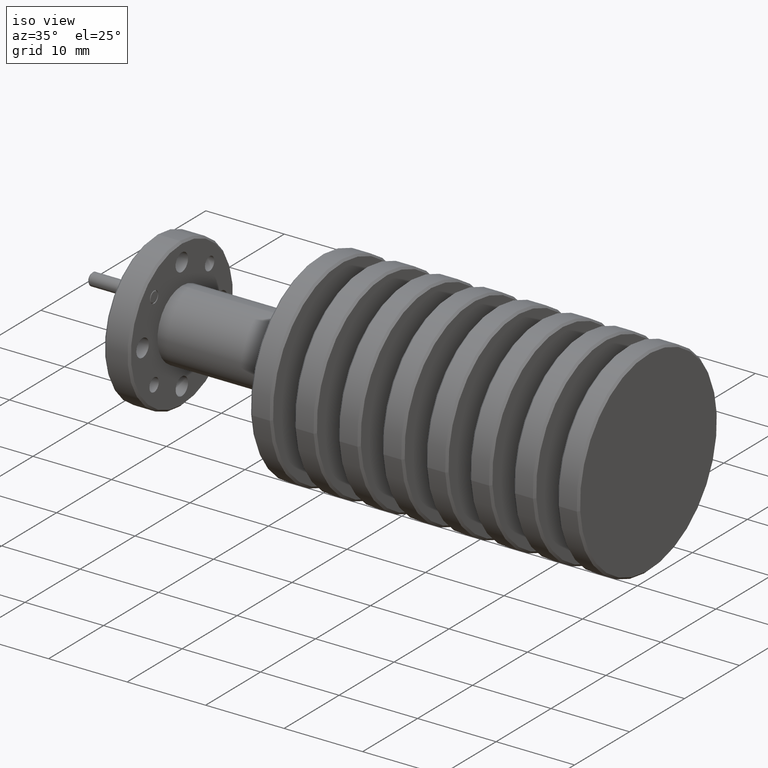
[diagram: clean part render]
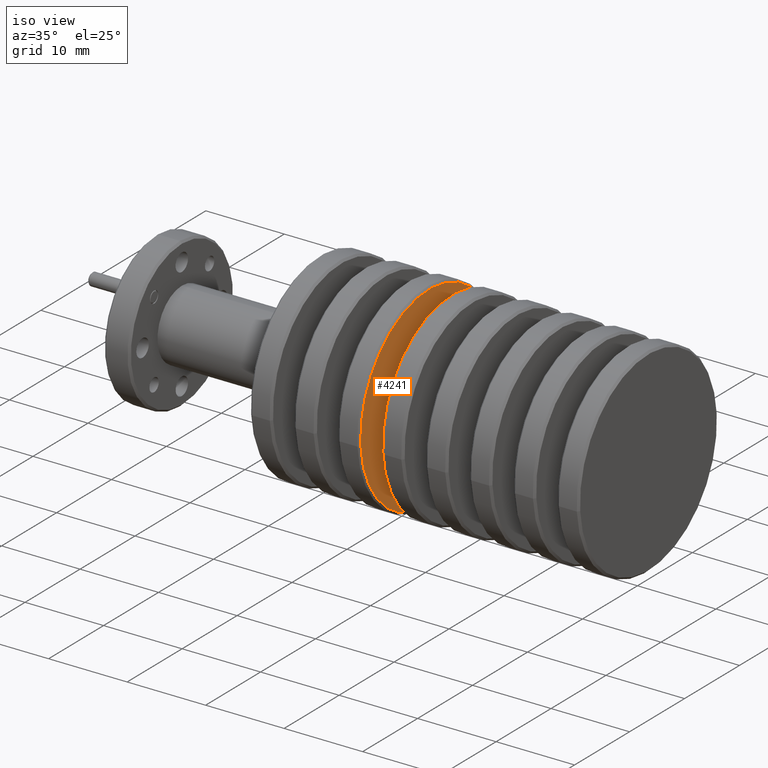
[diagram: same view with one face highlighted and labeled with its STEP entity id]
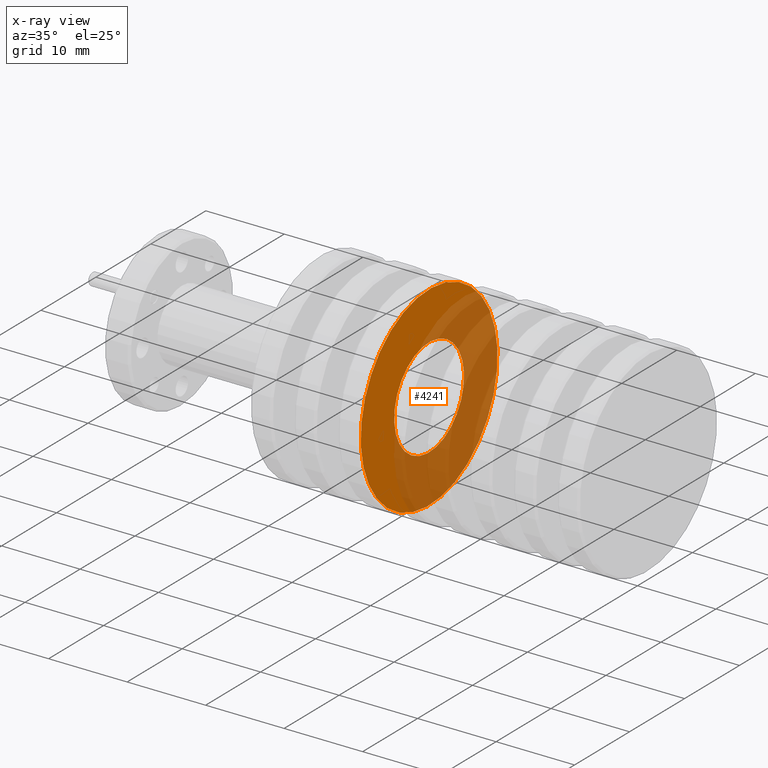
[diagram: x-ray of the same camera — body ghosted, the highlighted face saturated]
A machine part, iso view. The second image highlights one B-rep face of the part: STEP entity #4241.
The next image is the same camera in x-ray: the body ghosted, the highlighted face saturated — about 54% of this face is hidden behind the body in this view.
In plain terms, the highlighted planar face has unit normal (1, 0, -0).
Its self-contained STEP definition (entity closure, byte-faithful):
#128 = CARTESIAN_POINT ( 'NONE',  ( -0.2938896942806700800, 0.7445558922448980400, 0.9927839531004593000 ) ) ;
#321 = AXIS2_PLACEMENT_3D ( 'NONE', #3412, #2693, #1372 ) ;
#350 = EDGE_CURVE ( 'NONE', #4619, #6216, #802, .T. ) ;
#523 = CARTESIAN_POINT ( 'NONE',  ( -0.2938896942806698000, 1.233292430136084100, 1.027949227593007800 ) ) ;
#802 = CIRCLE ( 'NONE', #3664, 0.4899999999999990500 ) ;
#836 = DIRECTION ( 'NONE',  ( 1.000000000000000000, 0.0000000000000000000, 0.0000000000000000000 ) ) ;
#1016 = EDGE_CURVE ( 'NONE', #2884, #3946, #4937, .T. ) ;
#1191 = ORIENTED_EDGE ( 'NONE', *, *, #8244, .T. ) ;
#1316 = CARTESIAN_POINT ( 'NONE',  ( -0.2938896942806698000, 1.233292430136084100, 1.027949227593007800 ) ) ;
#1372 = DIRECTION ( 'NONE',  ( 0.0000000000000000000, 0.9974215059003817000, 0.07176586631132356200 ) ) ;
#1806 = EDGE_LOOP ( 'NONE', ( #1191, #5943 ) ) ;
#1812 = DIRECTION ( 'NONE',  ( 0.0000000000000000000, 0.9974215059003817000, 0.07176586631132377000 ) ) ;
#1969 = CARTESIAN_POINT ( 'NONE',  ( -0.2938896942806700800, 1.722028968027270200, 1.063114502085556400 ) ) ;
#2050 = DIRECTION ( 'NONE',  ( 1.000000000000000000, 0.0000000000000000000, 0.0000000000000000000 ) ) ;
#2693 = DIRECTION ( 'NONE',  ( 1.000000000000000000, 0.0000000000000000000, -0.0000000000000000000 ) ) ;
#2803 = CARTESIAN_POINT ( 'NONE',  ( -0.2938896942806700800, 1.233292430136084100, 1.027949227593007800 ) ) ;
#2863 = DIRECTION ( 'NONE',  ( 0.0000000000000000000, 0.9974215059003817000, 0.07176586631132350600 ) ) ;
#2884 = VERTEX_POINT ( 'NONE', #7127 ) ;
#2900 = ORIENTED_EDGE ( 'NONE', *, *, #1016, .F. ) ;
#2903 = DIRECTION ( 'NONE',  ( 1.000000000000000000, 0.0000000000000000000, 0.0000000000000000000 ) ) ;
#3270 = FACE_OUTER_BOUND ( 'NONE', #1806, .T. ) ;
#3329 = CIRCLE ( 'NONE', #6088, 0.4899999999999990500 ) ;
#3412 = CARTESIAN_POINT ( 'NONE',  ( -0.2938896942806700800, 1.215350963558253100, 1.277304604068102900 ) ) ;
#3664 = AXIS2_PLACEMENT_3D ( 'NONE', #2803, #836, #8270 ) ;
#3946 = VERTEX_POINT ( 'NONE', #8462 ) ;
#3983 = CIRCLE ( 'NONE', #5007, 0.2499999999999999200 ) ;
#4241 = ADVANCED_FACE ( 'NONE', ( #3270, #6689 ), #8081, .T. ) ;
#4423 = EDGE_LOOP ( 'NONE', ( #2900, #8532 ) ) ;
#4619 = VERTEX_POINT ( 'NONE', #1969 ) ;
#4937 = CIRCLE ( 'NONE', #8076, 0.2499999999999999200 ) ;
#5007 = AXIS2_PLACEMENT_3D ( 'NONE', #1316, #2903, #6244 ) ;
#5566 = CARTESIAN_POINT ( 'NONE',  ( -0.2938896942806700800, 1.233292430136084100, 1.027949227593007800 ) ) ;
#5943 = ORIENTED_EDGE ( 'NONE', *, *, #350, .T. ) ;
#6088 = AXIS2_PLACEMENT_3D ( 'NONE', #5566, #2050, #2863 ) ;
#6216 = VERTEX_POINT ( 'NONE', #128 ) ;
#6244 = DIRECTION ( 'NONE',  ( 0.0000000000000000000, 0.9974215059003817000, 0.07176586631132377000 ) ) ;
#6689 = FACE_BOUND ( 'NONE', #4423, .T. ) ;
#7127 = CARTESIAN_POINT ( 'NONE',  ( -0.2938896942806698000, 1.482647806611179500, 1.045890694170838800 ) ) ;
#7210 = EDGE_CURVE ( 'NONE', #3946, #2884, #3983, .T. ) ;
#7236 = DIRECTION ( 'NONE',  ( 1.000000000000000000, 0.0000000000000000000, 0.0000000000000000000 ) ) ;
#8076 = AXIS2_PLACEMENT_3D ( 'NONE', #523, #7236, #1812 ) ;
#8081 = PLANE ( 'NONE',  #321 ) ;
#8244 = EDGE_CURVE ( 'NONE', #6216, #4619, #3329, .T. ) ;
#8270 = DIRECTION ( 'NONE',  ( 0.0000000000000000000, 0.9974215059003817000, 0.07176586631132350600 ) ) ;
#8462 = CARTESIAN_POINT ( 'NONE',  ( -0.2938896942806698000, 0.9839370536609889400, 1.010007761015177000 ) ) ;
#8532 = ORIENTED_EDGE ( 'NONE', *, *, #7210, .F. ) ;